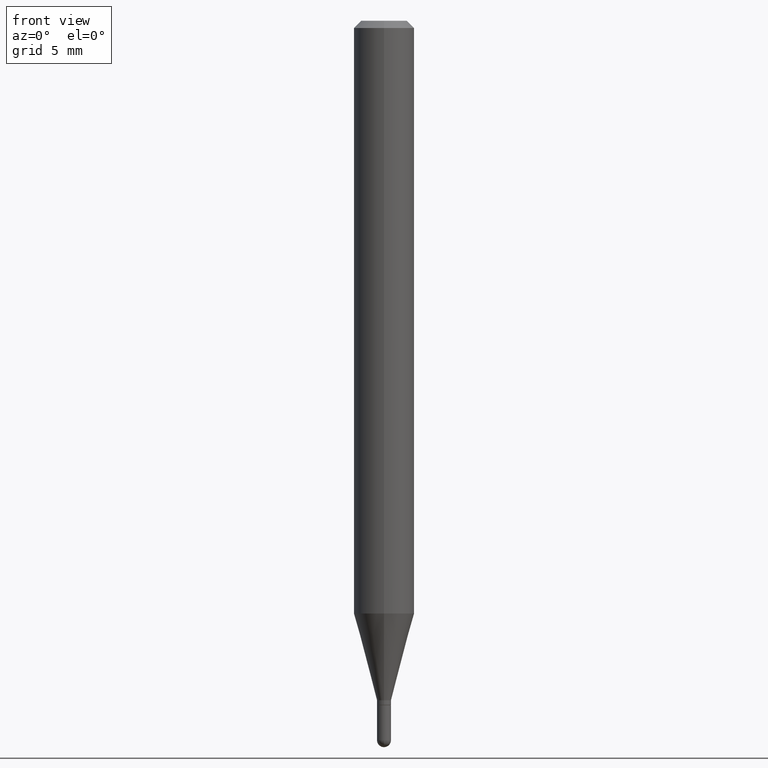
[diagram: clean part render]
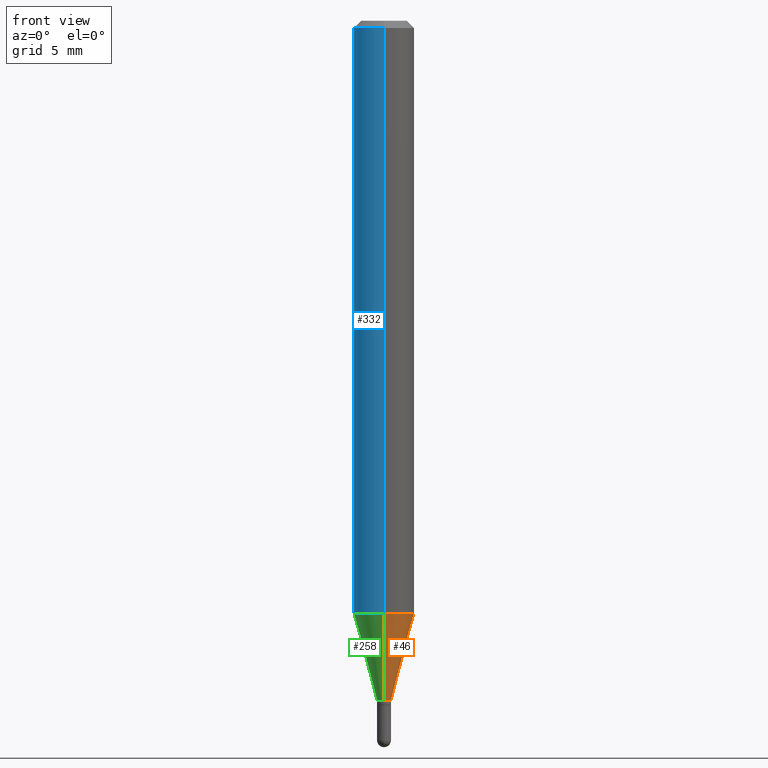
[diagram: same view with three faces highlighted in distinct colors, each labeled with its STEP entity id]
A machine part, front view with three faces highlighted in distinct colors.
Their STEP definitions:

[orange] entity #46 — the highlighted conical surface has half-angle 15 deg.
#12 = LINE ( 'NONE', #144, #48 ) ;
#18 = EDGE_CURVE ( 'NONE', #275, #20, #12, .T. ) ;
#20 = VERTEX_POINT ( 'NONE', #296 ) ;
#35 = CIRCLE ( 'NONE', #109, 0.06250000000000000000 ) ;
#46 = ADVANCED_FACE ( 'NONE', ( #300 ), #346, .T. ) ;
#48 = VECTOR ( 'NONE', #62, 39.37007874015748854 ) ;
#62 = DIRECTION ( 'NONE',  ( 1.839019923739601893E-15, 0.2588190451025252359, 0.9659258262890670910 ) ) ;
#64 = EDGE_CURVE ( 'NONE', #331, #20, #35, .T. ) ;
#82 = CIRCLE ( 'NONE', #228, 0.01449999999999992441 ) ;
#90 = CARTESIAN_POINT ( 'NONE',  ( 2.735589532676705169E-16, 0.01449999999999502555, -1.403000000000000025 ) ) ;
#109 = AXIS2_PLACEMENT_3D ( 'NONE', #255, #297, #337 ) ;
#126 = VERTEX_POINT ( 'NONE', #288 ) ;
#131 = ORIENTED_EDGE ( 'NONE', *, *, #194, .T. ) ;
#144 = CARTESIAN_POINT ( 'NONE',  ( 1.030286966852482683E-16, 0.01449999999999502555, -1.403000000000000025 ) ) ;
#145 = DIRECTION ( 'NONE',  ( -6.982962677686265922E-15, -1.000000000000000000, 0.000000000000000000 ) ) ;
#151 = VECTOR ( 'NONE', #222, 39.37007874015748854 ) ;
#194 = EDGE_CURVE ( 'NONE', #126, #275, #82, .T. ) ;
#221 = DIRECTION ( 'NONE',  ( -2.445481687363009475E-29, 3.491462892263280603E-15, 1.000000000000000000 ) ) ;
#222 = DIRECTION ( 'NONE',  ( -1.807323732225331717E-15, -0.2588190451025184080, 0.9659258262890689783 ) ) ;
#228 = AXIS2_PLACEMENT_3D ( 'NONE', #238, #475, #273 ) ;
#238 = CARTESIAN_POINT ( 'NONE',  ( 3.431010807370303051E-29, -4.898522437845382754E-15, -1.403000000000000025 ) ) ;
#255 = CARTESIAN_POINT ( 'NONE',  ( 2.992931035871838539E-29, -4.273067226325322943E-15, -1.223861561236694540 ) ) ;
#273 = DIRECTION ( 'NONE',  ( -6.982962677686265922E-15, -1.000000000000000000, 0.000000000000000000 ) ) ;
#275 = VERTEX_POINT ( 'NONE', #90 ) ;
#288 = CARTESIAN_POINT ( 'NONE',  ( -1.012529588264160223E-16, -0.01450000000000482153, -1.403000000000000025 ) ) ;
#293 = CARTESIAN_POINT ( 'NONE',  ( 3.431010807370303051E-29, -4.898522437845382754E-15, -1.403000000000000025 ) ) ;
#296 = CARTESIAN_POINT ( 'NONE',  ( 4.440892098500922971E-16, 0.06249999999999571176, -1.223861561236694762 ) ) ;
#297 = DIRECTION ( 'NONE',  ( -2.445481687363009475E-29, 3.491462892263280603E-15, 1.000000000000000000 ) ) ;
#300 = FACE_OUTER_BOUND ( 'NONE', #365, .T. ) ;
#309 = EDGE_CURVE ( 'NONE', #126, #331, #316, .T. ) ;
#316 = LINE ( 'NONE', #375, #151 ) ;
#331 = VERTEX_POINT ( 'NONE', #343 ) ;
#334 = AXIS2_PLACEMENT_3D ( 'NONE', #293, #221, #145 ) ;
#337 = DIRECTION ( 'NONE',  ( -6.982962677686265922E-15, -1.000000000000000000, 4.370956789862821150E-15 ) ) ;
#343 = CARTESIAN_POINT ( 'NONE',  ( -4.364351673553617913E-16, -0.06250000000000427436, -1.223861561236694095 ) ) ;
#346 = CONICAL_SURFACE ( 'NONE', #334, 0.01449999999999992441, 0.2617993877991505181 ) ;
#365 = EDGE_LOOP ( 'NONE', ( #131, #463, #373, #408 ) ) ;
#373 = ORIENTED_EDGE ( 'NONE', *, *, #64, .F. ) ;
#375 = CARTESIAN_POINT ( 'NONE',  ( -1.012529588264160223E-16, -0.01450000000000482153, -1.403000000000000025 ) ) ;
#408 = ORIENTED_EDGE ( 'NONE', *, *, #309, .F. ) ;
#463 = ORIENTED_EDGE ( 'NONE', *, *, #18, .T. ) ;
#475 = DIRECTION ( 'NONE',  ( -2.445481687363009475E-29, 3.491462892263280603E-15, 1.000000000000000000 ) ) ;

[blue] entity #332 — the highlighted cylindrical surface (edge-blend (fillet) strip) has radius 1.5875 mm, axis along (-0, 0, 1).
#15 = LINE ( 'NONE', #504, #341 ) ;
#20 = VERTEX_POINT ( 'NONE', #296 ) ;
#22 = CARTESIAN_POINT ( 'NONE',  ( 3.668222531044516962E-31, -5.237194338394923985E-17, -0.01500000000000000812 ) ) ;
#32 = CARTESIAN_POINT ( 'NONE',  ( 4.440892098500927901E-16, 0.06249999999999995837, -0.01500000000000022669 ) ) ;
#34 = LINE ( 'NONE', #169, #427 ) ;
#44 = ORIENTED_EDGE ( 'NONE', *, *, #428, .F. ) ;
#50 = AXIS2_PLACEMENT_3D ( 'NONE', #22, #98, #411 ) ;
#57 = DIRECTION ( 'NONE',  ( -6.982962677686265922E-15, -1.000000000000000000, 4.370956789862821150E-15 ) ) ;
#74 = ORIENTED_EDGE ( 'NONE', *, *, #249, .T. ) ;
#98 = DIRECTION ( 'NONE',  ( -2.445481687363009475E-29, 3.491462892263280603E-15, 1.000000000000000000 ) ) ;
#113 = CARTESIAN_POINT ( 'NONE',  ( 0.000000000000000000, 0.000000000000000000, 0.000000000000000000 ) ) ;
#134 = VERTEX_POINT ( 'NONE', #32 ) ;
#169 = CARTESIAN_POINT ( 'NONE',  ( -4.364351673553916201E-16, -0.06250000000000000000, 2.182164307664550130E-16 ) ) ;
#247 = ORIENTED_EDGE ( 'NONE', *, *, #391, .F. ) ;
#249 = EDGE_CURVE ( 'NONE', #331, #415, #34, .T. ) ;
#257 = CIRCLE ( 'NONE', #50, 0.06250000000000000000 ) ;
#260 = CARTESIAN_POINT ( 'NONE',  ( 2.992931035871838539E-29, -4.273067226325322943E-15, -1.223861561236694540 ) ) ;
#261 = ORIENTED_EDGE ( 'NONE', *, *, #472, .T. ) ;
#291 = FACE_OUTER_BOUND ( 'NONE', #484, .T. ) ;
#294 = DIRECTION ( 'NONE',  ( -2.445481687363009475E-29, 3.491462892263280603E-15, 1.000000000000000000 ) ) ;
#296 = CARTESIAN_POINT ( 'NONE',  ( 4.440892098500922971E-16, 0.06249999999999571176, -1.223861561236694762 ) ) ;
#331 = VERTEX_POINT ( 'NONE', #343 ) ;
#332 = ADVANCED_FACE ( 'NONE', ( #291 ), #462, .T. ) ;
#341 = VECTOR ( 'NONE', #384, 39.37007874015748143 ) ;
#343 = CARTESIAN_POINT ( 'NONE',  ( -4.364351673553617913E-16, -0.06250000000000427436, -1.223861561236694095 ) ) ;
#368 = AXIS2_PLACEMENT_3D ( 'NONE', #260, #412, #57 ) ;
#383 = DIRECTION ( 'NONE',  ( -6.982962677686265922E-15, -1.000000000000000000, 3.491462892263280208E-15 ) ) ;
#384 = DIRECTION ( 'NONE',  ( -2.445481687363009755E-29, 3.491462892263280997E-15, 1.000000000000000000 ) ) ;
#391 = EDGE_CURVE ( 'NONE', #134, #415, #257, .T. ) ;
#411 = DIRECTION ( 'NONE',  ( -6.982962677686265922E-15, -1.000000000000000000, 3.483106191921935554E-15 ) ) ;
#412 = DIRECTION ( 'NONE',  ( -2.445481687363009475E-29, 3.491462892263280603E-15, 1.000000000000000000 ) ) ;
#415 = VERTEX_POINT ( 'NONE', #423 ) ;
#423 = CARTESIAN_POINT ( 'NONE',  ( -4.364351673553912750E-16, -0.06250000000000005551, -0.01499999999999979128 ) ) ;
#427 = VECTOR ( 'NONE', #446, 39.37007874015748143 ) ;
#428 = EDGE_CURVE ( 'NONE', #20, #134, #15, .T. ) ;
#438 = AXIS2_PLACEMENT_3D ( 'NONE', #113, #294, #383 ) ;
#446 = DIRECTION ( 'NONE',  ( -2.445481687363009755E-29, 3.491462892263280997E-15, 1.000000000000000000 ) ) ;
#454 = CIRCLE ( 'NONE', #368, 0.06250000000000000000 ) ;
#462 = CYLINDRICAL_SURFACE ( 'NONE', #438, 0.06250000000000000000 ) ;
#472 = EDGE_CURVE ( 'NONE', #20, #331, #454, .T. ) ;
#484 = EDGE_LOOP ( 'NONE', ( #44, #261, #74, #247 ) ) ;
#504 = CARTESIAN_POINT ( 'NONE',  ( 4.440892098500625669E-16, 0.06250000000000000000, -2.182164307664550130E-16 ) ) ;

[green] entity #258 — the highlighted conical surface has half-angle 15 deg.
#3 = CARTESIAN_POINT ( 'NONE',  ( 3.431010807370303051E-29, -4.898522437845382754E-15, -1.403000000000000025 ) ) ;
#12 = LINE ( 'NONE', #144, #48 ) ;
#18 = EDGE_CURVE ( 'NONE', #275, #20, #12, .T. ) ;
#20 = VERTEX_POINT ( 'NONE', #296 ) ;
#48 = VECTOR ( 'NONE', #62, 39.37007874015748854 ) ;
#57 = DIRECTION ( 'NONE',  ( -6.982962677686265922E-15, -1.000000000000000000, 4.370956789862821150E-15 ) ) ;
#62 = DIRECTION ( 'NONE',  ( 1.839019923739601893E-15, 0.2588190451025252359, 0.9659258262890670910 ) ) ;
#67 = CIRCLE ( 'NONE', #437, 0.01449999999999992441 ) ;
#81 = ORIENTED_EDGE ( 'NONE', *, *, #18, .F. ) ;
#90 = CARTESIAN_POINT ( 'NONE',  ( 2.735589532676705169E-16, 0.01449999999999502555, -1.403000000000000025 ) ) ;
#91 = ORIENTED_EDGE ( 'NONE', *, *, #472, .F. ) ;
#126 = VERTEX_POINT ( 'NONE', #288 ) ;
#136 = CONICAL_SURFACE ( 'NONE', #420, 0.01449999999999992441, 0.2617993877991505181 ) ;
#144 = CARTESIAN_POINT ( 'NONE',  ( 1.030286966852482683E-16, 0.01449999999999502555, -1.403000000000000025 ) ) ;
#151 = VECTOR ( 'NONE', #222, 39.37007874015748854 ) ;
#208 = DIRECTION ( 'NONE',  ( -6.982962677686265922E-15, -1.000000000000000000, 0.000000000000000000 ) ) ;
#211 = FACE_OUTER_BOUND ( 'NONE', #349, .T. ) ;
#222 = DIRECTION ( 'NONE',  ( -1.807323732225331717E-15, -0.2588190451025184080, 0.9659258262890689783 ) ) ;
#258 = ADVANCED_FACE ( 'NONE', ( #211 ), #136, .T. ) ;
#260 = CARTESIAN_POINT ( 'NONE',  ( 2.992931035871838539E-29, -4.273067226325322943E-15, -1.223861561236694540 ) ) ;
#262 = EDGE_CURVE ( 'NONE', #275, #126, #67, .T. ) ;
#275 = VERTEX_POINT ( 'NONE', #90 ) ;
#277 = ORIENTED_EDGE ( 'NONE', *, *, #309, .T. ) ;
#287 = DIRECTION ( 'NONE',  ( -2.445481687363009475E-29, 3.491462892263280603E-15, 1.000000000000000000 ) ) ;
#288 = CARTESIAN_POINT ( 'NONE',  ( -1.012529588264160223E-16, -0.01450000000000482153, -1.403000000000000025 ) ) ;
#296 = CARTESIAN_POINT ( 'NONE',  ( 4.440892098500922971E-16, 0.06249999999999571176, -1.223861561236694762 ) ) ;
#309 = EDGE_CURVE ( 'NONE', #126, #331, #316, .T. ) ;
#316 = LINE ( 'NONE', #375, #151 ) ;
#321 = CARTESIAN_POINT ( 'NONE',  ( 3.431010807370303051E-29, -4.898522437845382754E-15, -1.403000000000000025 ) ) ;
#327 = DIRECTION ( 'NONE',  ( -2.445481687363009475E-29, 3.491462892263280603E-15, 1.000000000000000000 ) ) ;
#331 = VERTEX_POINT ( 'NONE', #343 ) ;
#343 = CARTESIAN_POINT ( 'NONE',  ( -4.364351673553617913E-16, -0.06250000000000427436, -1.223861561236694095 ) ) ;
#349 = EDGE_LOOP ( 'NONE', ( #81, #407, #277, #91 ) ) ;
#368 = AXIS2_PLACEMENT_3D ( 'NONE', #260, #412, #57 ) ;
#375 = CARTESIAN_POINT ( 'NONE',  ( -1.012529588264160223E-16, -0.01450000000000482153, -1.403000000000000025 ) ) ;
#407 = ORIENTED_EDGE ( 'NONE', *, *, #262, .T. ) ;
#412 = DIRECTION ( 'NONE',  ( -2.445481687363009475E-29, 3.491462892263280603E-15, 1.000000000000000000 ) ) ;
#420 = AXIS2_PLACEMENT_3D ( 'NONE', #3, #327, #208 ) ;
#431 = DIRECTION ( 'NONE',  ( -6.982962677686265922E-15, -1.000000000000000000, 0.000000000000000000 ) ) ;
#437 = AXIS2_PLACEMENT_3D ( 'NONE', #321, #287, #431 ) ;
#454 = CIRCLE ( 'NONE', #368, 0.06250000000000000000 ) ;
#472 = EDGE_CURVE ( 'NONE', #20, #331, #454, .T. ) ;